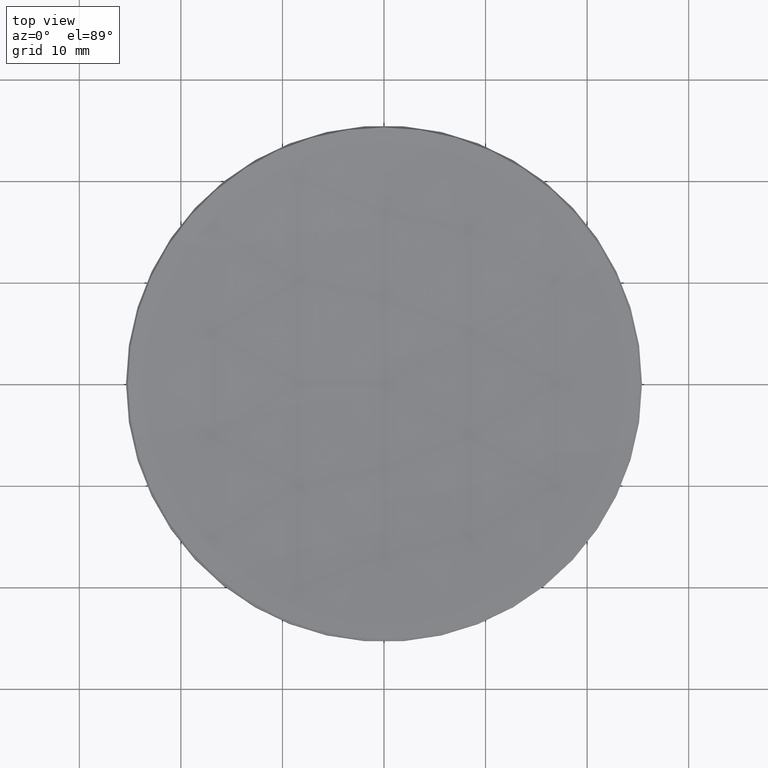
[diagram: clean part render]
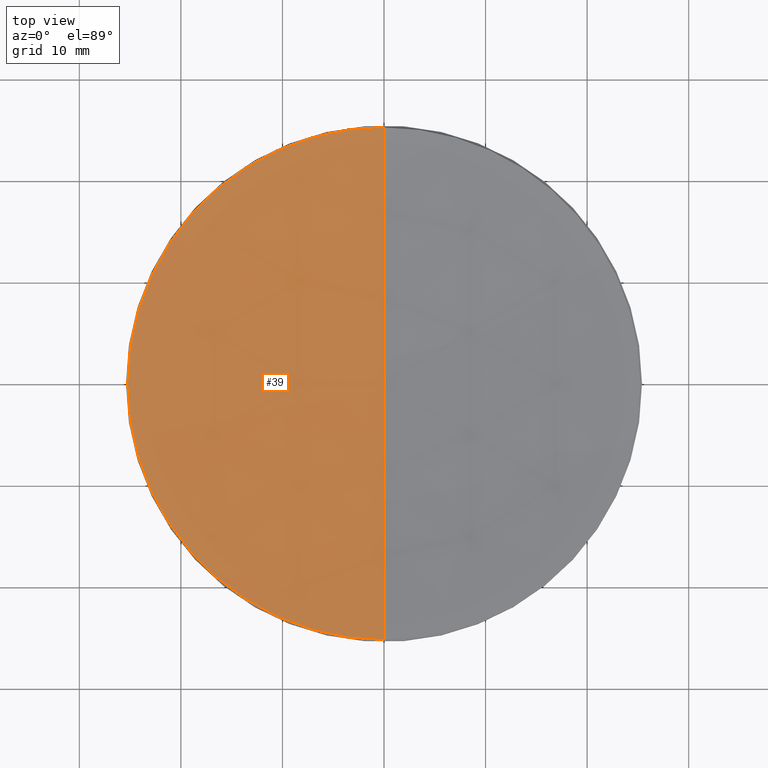
[diagram: same view with one face highlighted and labeled with its STEP entity id]
A machine part, top view. The second image highlights one B-rep face of the part: STEP entity #39.
In plain terms, the highlighted spherical surface has radius 279.12 mm.
Its self-contained STEP definition (entity closure, byte-faithful):
#10 = CARTESIAN_POINT ( 'NONE',  ( -25.21668983323140623, 0.000000000000000000, 15.98331016676862681 ) ) ;
#19 = DIRECTION ( 'NONE',  ( -0.000000000000000000, -0.000000000000000000, 1.000000000000000000 ) ) ;
#22 = ORIENTED_EDGE ( 'NONE', *, *, #28, .T. ) ;
#28 = EDGE_CURVE ( 'NONE', #249, #109, #169, .T. ) ;
#38 = ORIENTED_EDGE ( 'NONE', *, *, #151, .T. ) ;
#39 = ADVANCED_FACE ( 'NONE', ( #83 ), #265, .F. ) ;
#41 = VERTEX_POINT ( 'NONE', #85 ) ;
#42 = CIRCLE ( 'NONE', #164, 279.1200000000000614 ) ;
#76 = CARTESIAN_POINT ( 'NONE',  ( 0.000000000000000000, 0.000000000000000000, 293.9618937912173351 ) ) ;
#83 = FACE_OUTER_BOUND ( 'NONE', #138, .T. ) ;
#85 = CARTESIAN_POINT ( 'NONE',  ( -3.088153848935836496E-15, -25.21668983323133872, 15.98331016676862681 ) ) ;
#89 = DIRECTION ( 'NONE',  ( -1.224646799147352961E-16, -1.000000000000000000, 0.000000000000000000 ) ) ;
#99 = CARTESIAN_POINT ( 'NONE',  ( 0.000000000000000000, 25.21668983323133872, 15.98331016676862681 ) ) ;
#105 = EDGE_CURVE ( 'NONE', #231, #41, #233, .T. ) ;
#107 = AXIS2_PLACEMENT_3D ( 'NONE', #196, #166, #266 ) ;
#108 = DIRECTION ( 'NONE',  ( -1.000000000000000000, 0.000000000000000000, 0.000000000000000000 ) ) ;
#109 = VERTEX_POINT ( 'NONE', #10 ) ;
#114 = CARTESIAN_POINT ( 'NONE',  ( 0.000000000000000000, 0.000000000000000000, 293.9618937912173351 ) ) ;
#138 = EDGE_LOOP ( 'NONE', ( #209, #38, #22, #156 ) ) ;
#151 = EDGE_CURVE ( 'NONE', #231, #249, #42, .T. ) ;
#156 = ORIENTED_EDGE ( 'NONE', *, *, #176, .T. ) ;
#164 = AXIS2_PLACEMENT_3D ( 'NONE', #76, #193, #190 ) ;
#166 = DIRECTION ( 'NONE',  ( -0.000000000000000000, -0.000000000000000000, 1.000000000000000000 ) ) ;
#169 = CIRCLE ( 'NONE', #302, 25.21668983323140623 ) ;
#176 = EDGE_CURVE ( 'NONE', #109, #41, #244, .T. ) ;
#180 = AXIS2_PLACEMENT_3D ( 'NONE', #114, #325, #89 ) ;
#190 = DIRECTION ( 'NONE',  ( 0.000000000000000000, 0.000000000000000000, -1.000000000000000000 ) ) ;
#193 = DIRECTION ( 'NONE',  ( 1.000000000000000000, 0.000000000000000000, 0.000000000000000000 ) ) ;
#196 = CARTESIAN_POINT ( 'NONE',  ( 0.000000000000000000, 0.000000000000000000, 15.98331016676862681 ) ) ;
#209 = ORIENTED_EDGE ( 'NONE', *, *, #105, .F. ) ;
#214 = DIRECTION ( 'NONE',  ( 0.000000000000000000, 1.000000000000000000, 0.000000000000000000 ) ) ;
#230 = DIRECTION ( 'NONE',  ( 1.000000000000000000, 0.000000000000000000, 0.000000000000000000 ) ) ;
#231 = VERTEX_POINT ( 'NONE', #304 ) ;
#233 = CIRCLE ( 'NONE', #180, 279.1200000000000614 ) ;
#237 = CARTESIAN_POINT ( 'NONE',  ( 0.000000000000000000, 0.000000000000000000, 293.9618937912173351 ) ) ;
#244 = CIRCLE ( 'NONE', #107, 25.21668983323140623 ) ;
#249 = VERTEX_POINT ( 'NONE', #99 ) ;
#255 = AXIS2_PLACEMENT_3D ( 'NONE', #237, #108, #214 ) ;
#265 = SPHERICAL_SURFACE ( 'NONE', #255, 279.1200000000000614 ) ;
#266 = DIRECTION ( 'NONE',  ( 1.000000000000000000, 0.000000000000000000, 0.000000000000000000 ) ) ;
#291 = CARTESIAN_POINT ( 'NONE',  ( 0.000000000000000000, 0.000000000000000000, 15.98331016676862681 ) ) ;
#302 = AXIS2_PLACEMENT_3D ( 'NONE', #291, #19, #230 ) ;
#304 = CARTESIAN_POINT ( 'NONE',  ( 0.000000000000000000, 1.709117072890046227E-14, 14.84189379121730923 ) ) ;
#325 = DIRECTION ( 'NONE',  ( -1.000000000000000000, 1.224646799147353207E-16, 0.000000000000000000 ) ) ;